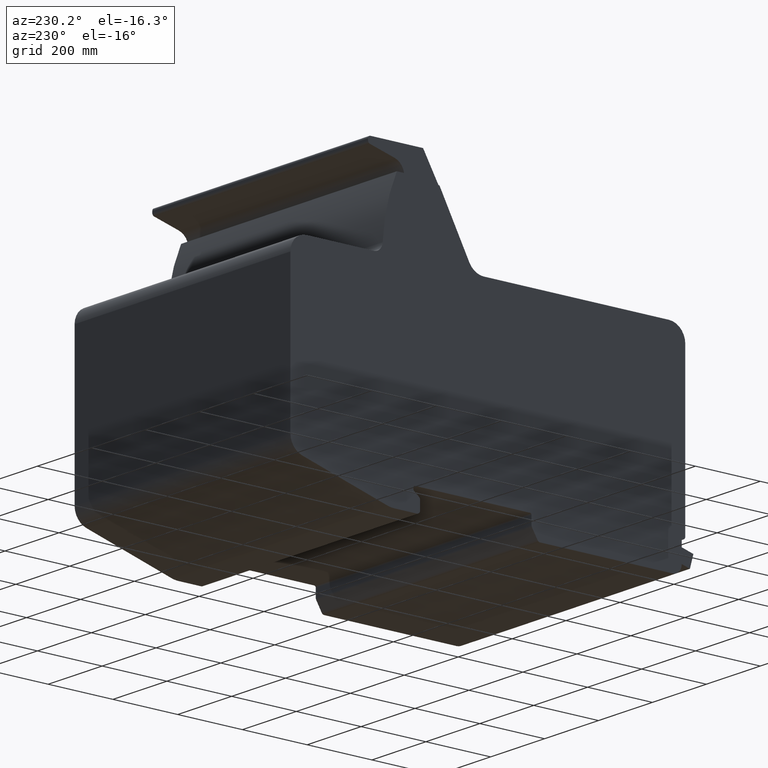
[diagram: clean part render]
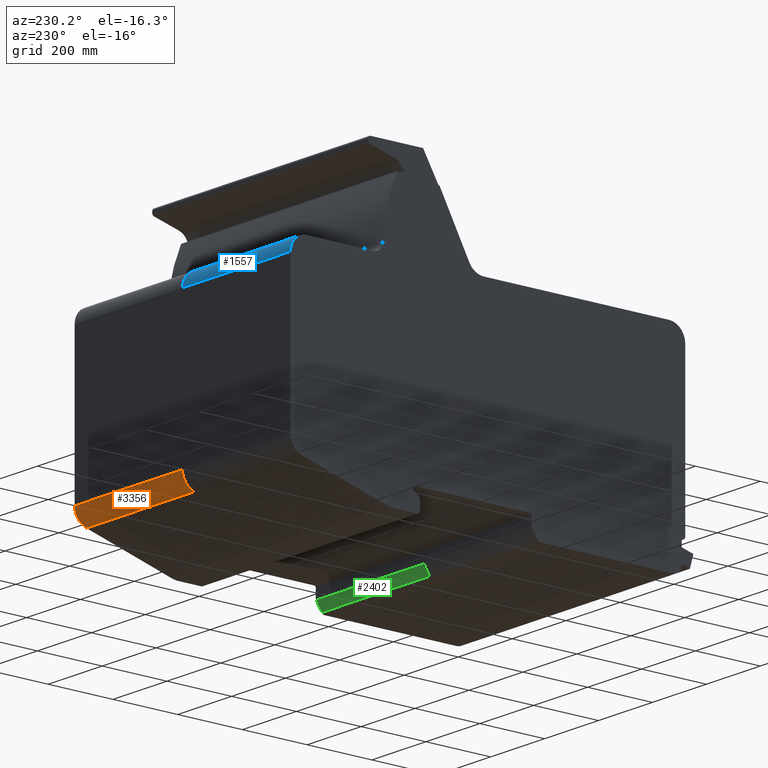
[diagram: same view with three faces highlighted in distinct colors, each labeled with its STEP entity id]
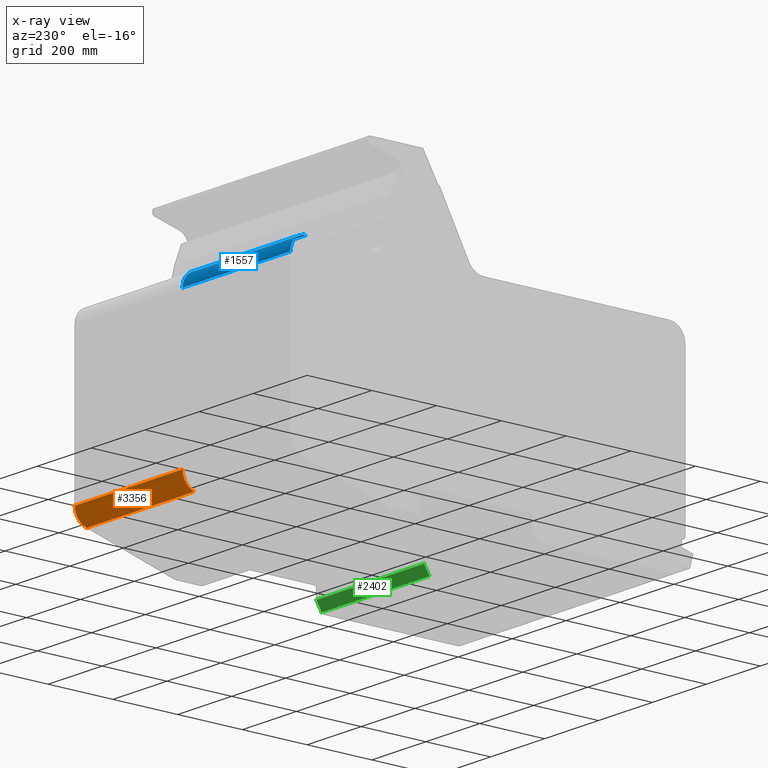
[diagram: x-ray of the same camera — body ghosted, the three highlighted faces saturated]
A machine part, auxiliary view with three faces highlighted in distinct colors.
The next image is the same camera in x-ray (body ghosted, the three faces saturated) — at least one of them is partly hidden behind the body in this view.
Their STEP definitions:

[orange] entity #3356 — the highlighted cylindrical surface (edge-blend (fillet) strip) has radius 50 mm, axis along (1, 0, 0).
#3298=CARTESIAN_POINT('',(800.0,385.0,58.281992166299986));
#3299=VERTEX_POINT('',#3298);
#3306=CARTESIAN_POINT('',(400.0,385.0,58.281992166299986));
#3307=VERTEX_POINT('',#3306);
#3308=CARTESIAN_POINT('',(400.0,385.0,58.281992166299986));
#3309=DIRECTION('',(1.0,0.0,0.0));
#3310=VECTOR('',#3309,400.0);
#3311=LINE('',#3308,#3310);
#3312=EDGE_CURVE('',#3307,#3299,#3311,.T.);
#3324=CARTESIAN_POINT('',(400.0,335.00000000000057,58.281992166299794));
#3325=DIRECTION('',(1.0,0.0,0.0));
#3326=DIRECTION('',(0.0,0.797834977904538,-0.602875897703719));
#3327=AXIS2_PLACEMENT_3D('',#3324,#3325,#3326);
#3328=CYLINDRICAL_SURFACE('',#3327,49.999999999999467);
#3329=CARTESIAN_POINT('',(800.0,348.65406519679368,10.182444313937729));
#3330=VERTEX_POINT('',#3329);
#3331=CARTESIAN_POINT('',(800.0,335.00000000000057,58.281992166299794));
#3332=DIRECTION('',(-1.0,0.0,0.0));
#3333=DIRECTION('',(0.0,0.797834977904538,-0.602875897703719));
#3334=AXIS2_PLACEMENT_3D('',#3331,#3332,#3333);
#3335=CIRCLE('',#3334,49.999999999999467);
#3336=EDGE_CURVE('',#3299,#3330,#3335,.T.);
#3337=ORIENTED_EDGE('',*,*,#3336,.T.);
#3338=CARTESIAN_POINT('',(400.0,348.65406519679368,10.182444313937729));
#3339=VERTEX_POINT('',#3338);
#3340=CARTESIAN_POINT('',(400.0,348.65406519679368,10.182444313937729));
#3341=DIRECTION('',(1.0,0.0,0.0));
#3342=VECTOR('',#3341,400.0);
#3343=LINE('',#3340,#3342);
#3344=EDGE_CURVE('',#3339,#3330,#3343,.T.);
#3345=ORIENTED_EDGE('',*,*,#3344,.F.);
#3346=CARTESIAN_POINT('',(400.0,335.00000000000057,58.281992166299794));
#3347=DIRECTION('',(1.0,0.0,0.0));
#3348=DIRECTION('',(0.0,0.797834977904538,-0.602875897703719));
#3349=AXIS2_PLACEMENT_3D('',#3346,#3347,#3348);
#3350=CIRCLE('',#3349,49.999999999999467);
#3351=EDGE_CURVE('',#3339,#3307,#3350,.T.);
#3352=ORIENTED_EDGE('',*,*,#3351,.T.);
#3353=ORIENTED_EDGE('',*,*,#3312,.T.);
#3354=EDGE_LOOP('',(#3337,#3345,#3352,#3353));
#3355=FACE_OUTER_BOUND('',#3354,.T.);
#3356=ADVANCED_FACE('',(#3355),#3328,.T.);

[blue] entity #1557 — the highlighted cylindrical surface (edge-blend (fillet) strip) has radius 50 mm, axis along (1, 0, 0).
#1499=CARTESIAN_POINT('',(400.0,335.0,557.5));
#1500=VERTEX_POINT('',#1499);
#1507=CARTESIAN_POINT('',(0.0,335.0,557.5));
#1508=VERTEX_POINT('',#1507);
#1509=CARTESIAN_POINT('',(0.0,335.0,557.5));
#1510=DIRECTION('',(1.0,0.0,0.0));
#1511=VECTOR('',#1510,400.0);
#1512=LINE('',#1509,#1511);
#1513=EDGE_CURVE('',#1508,#1500,#1512,.T.);
#1525=CARTESIAN_POINT('',(0.0,335.00000000000011,507.50000000000028));
#1526=DIRECTION('',(1.0,0.0,0.0));
#1527=DIRECTION('',(0.0,0.707106781186547,0.707106781186548));
#1528=AXIS2_PLACEMENT_3D('',#1525,#1526,#1527);
#1529=CYLINDRICAL_SURFACE('',#1528,49.999999999999758);
#1530=CARTESIAN_POINT('',(400.0,384.99999999999989,507.50000000000023));
#1531=VERTEX_POINT('',#1530);
#1532=CARTESIAN_POINT('',(400.0,335.00000000000011,507.50000000000028));
#1533=DIRECTION('',(-1.0,0.0,0.0));
#1534=DIRECTION('',(0.0,0.707106781186547,0.707106781186548));
#1535=AXIS2_PLACEMENT_3D('',#1532,#1533,#1534);
#1536=CIRCLE('',#1535,49.999999999999758);
#1537=EDGE_CURVE('',#1500,#1531,#1536,.T.);
#1538=ORIENTED_EDGE('',*,*,#1537,.T.);
#1539=CARTESIAN_POINT('',(0.0,384.99999999999989,507.50000000000023));
#1540=VERTEX_POINT('',#1539);
#1541=CARTESIAN_POINT('',(0.0,384.99999999999989,507.50000000000023));
#1542=DIRECTION('',(1.0,0.0,0.0));
#1543=VECTOR('',#1542,400.0);
#1544=LINE('',#1541,#1543);
#1545=EDGE_CURVE('',#1540,#1531,#1544,.T.);
#1546=ORIENTED_EDGE('',*,*,#1545,.F.);
#1547=CARTESIAN_POINT('',(0.0,335.00000000000011,507.50000000000028));
#1548=DIRECTION('',(1.0,0.0,0.0));
#1549=DIRECTION('',(0.0,0.707106781186547,0.707106781186548));
#1550=AXIS2_PLACEMENT_3D('',#1547,#1548,#1549);
#1551=CIRCLE('',#1550,49.999999999999758);
#1552=EDGE_CURVE('',#1540,#1508,#1551,.T.);
#1553=ORIENTED_EDGE('',*,*,#1552,.T.);
#1554=ORIENTED_EDGE('',*,*,#1513,.T.);
#1555=EDGE_LOOP('',(#1538,#1546,#1553,#1554));
#1556=FACE_OUTER_BOUND('',#1555,.T.);
#1557=ADVANCED_FACE('',(#1556),#1529,.T.);

[green] entity #2402 — the highlighted planar face has unit normal (0, 0.8575, -0.5145).
#2344=CARTESIAN_POINT('',(800.0,-361.42507074288375,-34.875117904789754));
#2345=VERTEX_POINT('',#2344);
#2353=CARTESIAN_POINT('',(400.0,-361.42507074288375,-34.875117904789754));
#2354=VERTEX_POINT('',#2353);
#2355=CARTESIAN_POINT('',(400.0,-361.42507074288375,-34.875117904789754));
#2356=DIRECTION('',(1.0,0.0,0.0));
#2357=VECTOR('',#2356,400.0);
#2358=LINE('',#2355,#2357);
#2359=EDGE_CURVE('',#2354,#2345,#2358,.T.);
#2372=CARTESIAN_POINT('',(400.0,-361.42507074288375,-34.875117904789754));
#2373=DIRECTION('',(0.0,0.85749292571255,-0.514495755427517));
#2374=DIRECTION('',(-1.0,0.0,0.0));
#2375=AXIS2_PLACEMENT_3D('',#2372,#2373,#2374);
#2376=PLANE('',#2375);
#2377=CARTESIAN_POINT('',(800.0,-378.08697453258333,-62.644957554289782));
#2378=VERTEX_POINT('',#2377);
#2379=CARTESIAN_POINT('',(800.0,-361.42507074288375,-34.875117904789754));
#2380=DIRECTION('',(0.0,-0.514495755427517,-0.85749292571255));
#2381=VECTOR('',#2380,32.384919824760246);
#2382=LINE('',#2379,#2381);
#2383=EDGE_CURVE('',#2345,#2378,#2382,.T.);
#2384=ORIENTED_EDGE('',*,*,#2383,.T.);
#2385=CARTESIAN_POINT('',(400.0,-378.08697453258333,-62.644957554289782));
#2386=VERTEX_POINT('',#2385);
#2387=CARTESIAN_POINT('',(400.0,-378.08697453258333,-62.644957554289782));
#2388=DIRECTION('',(1.0,0.0,0.0));
#2389=VECTOR('',#2388,400.0);
#2390=LINE('',#2387,#2389);
#2391=EDGE_CURVE('',#2386,#2378,#2390,.T.);
#2392=ORIENTED_EDGE('',*,*,#2391,.F.);
#2393=CARTESIAN_POINT('',(400.0,-378.08697453258333,-62.644957554289782));
#2394=DIRECTION('',(0.0,0.514495755427517,0.85749292571255));
#2395=VECTOR('',#2394,32.384919824760246);
#2396=LINE('',#2393,#2395);
#2397=EDGE_CURVE('',#2386,#2354,#2396,.T.);
#2398=ORIENTED_EDGE('',*,*,#2397,.T.);
#2399=ORIENTED_EDGE('',*,*,#2359,.T.);
#2400=EDGE_LOOP('',(#2384,#2392,#2398,#2399));
#2401=FACE_OUTER_BOUND('',#2400,.T.);
#2402=ADVANCED_FACE('',(#2401),#2376,.T.);